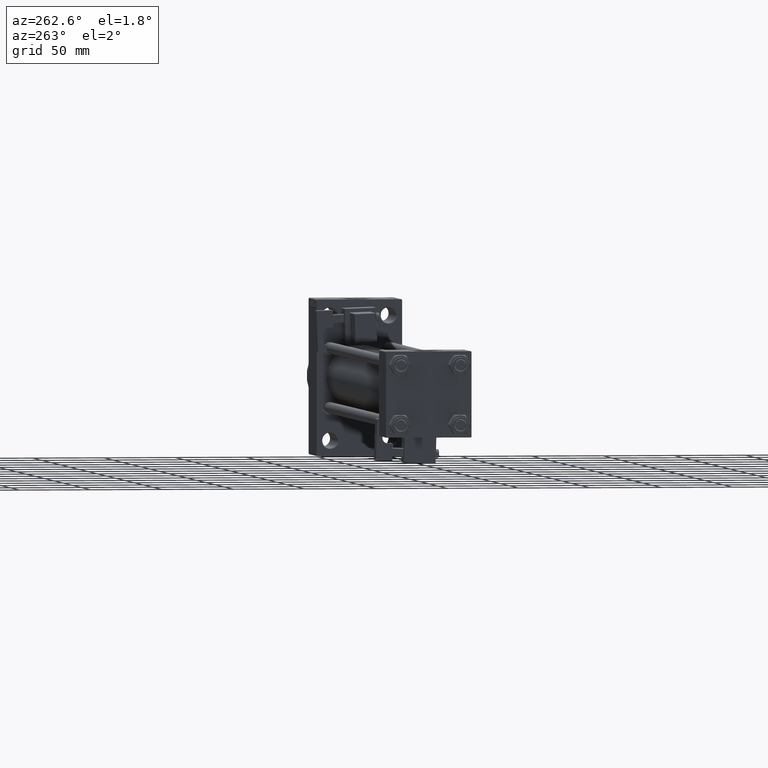
[diagram: clean part render]
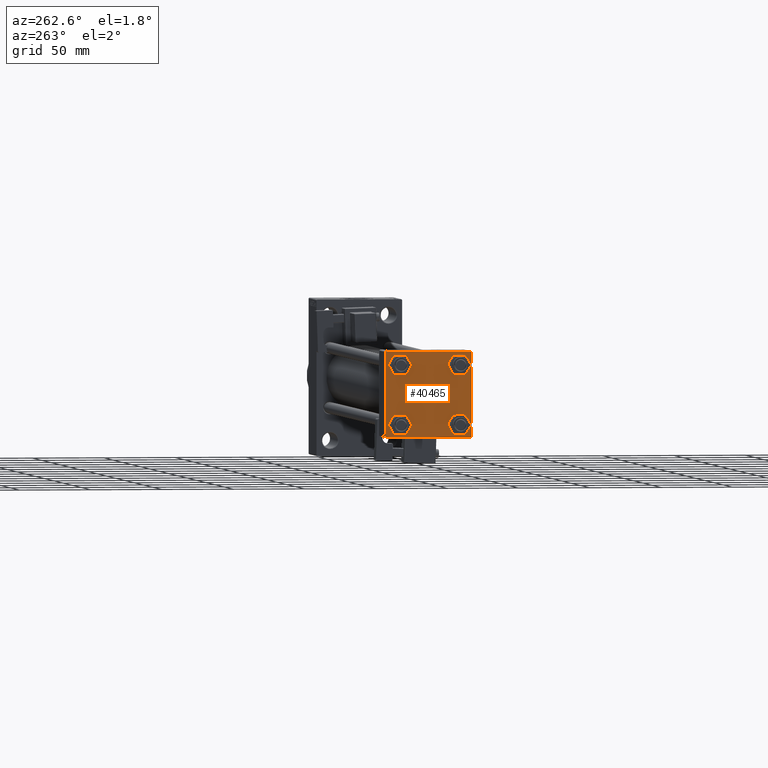
[diagram: same view with one face highlighted and labeled with its STEP entity id]
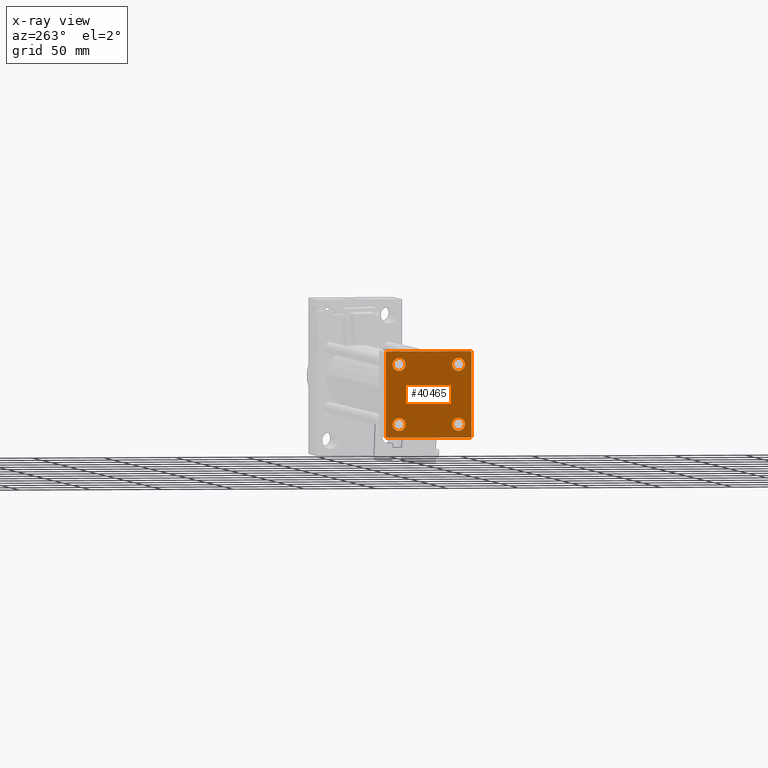
[diagram: x-ray of the same camera — body ghosted, the highlighted face saturated]
A machine part, auxiliary view. The second image highlights one B-rep face of the part: STEP entity #40465.
The next image is the same camera in x-ray: the body ghosted, the highlighted face saturated — about 0% of this face is hidden behind the body in this view.
In plain terms, the highlighted planar face has unit normal (-1, 0, 0).
Its self-contained STEP definition (entity closure, byte-faithful):
#130 = VERTEX_POINT ( 'NONE', #31679 ) ;
#153 = VECTOR ( 'NONE', #46203, 1000.000000000000114 ) ;
#1696 = ORIENTED_EDGE ( 'NONE', *, *, #16948, .T. ) ;
#2745 = ORIENTED_EDGE ( 'NONE', *, *, #18857, .F. ) ;
#2763 = VECTOR ( 'NONE', #50739, 1000.000000000000000 ) ;
#2998 = ORIENTED_EDGE ( 'NONE', *, *, #15105, .T. ) ;
#3346 = EDGE_CURVE ( 'NONE', #13725, #35781, #36344, .T. ) ;
#3425 = VERTEX_POINT ( 'NONE', #47971 ) ;
#3486 = VERTEX_POINT ( 'NONE', #22035 ) ;
#3893 = ORIENTED_EDGE ( 'NONE', *, *, #8958, .T. ) ;
#5159 = CARTESIAN_POINT ( 'NONE',  ( 0.000000000000000000, -20.84999999999999076, -20.85000000000000497 ) ) ;
#5486 = VECTOR ( 'NONE', #13920, 1000.000000000000000 ) ;
#6014 = VERTEX_POINT ( 'NONE', #45121 ) ;
#6241 = CARTESIAN_POINT ( 'NONE',  ( 0.000000000000000000, 29.99999999999999289, 29.50000000000000000 ) ) ;
#6502 = VERTEX_POINT ( 'NONE', #10227 ) ;
#7087 = VERTEX_POINT ( 'NONE', #16220 ) ;
#7116 = CARTESIAN_POINT ( 'NONE',  ( 0.000000000000000000, -30.00000000000000000, 29.99999999999999289 ) ) ;
#7464 = EDGE_CURVE ( 'NONE', #44774, #25456, #39521, .T. ) ;
#7700 = DIRECTION ( 'NONE',  ( 0.000000000000000000, -0.7071067811865474617, 0.7071067811865474617 ) ) ;
#8592 = DIRECTION ( 'NONE',  ( 1.000000000000000000, -0.000000000000000000, 0.000000000000000000 ) ) ;
#8799 = FACE_OUTER_BOUND ( 'NONE', #35746, .T. ) ;
#8958 = EDGE_CURVE ( 'NONE', #7087, #3486, #22410, .T. ) ;
#8967 = VERTEX_POINT ( 'NONE', #25935 ) ;
#9106 = EDGE_LOOP ( 'NONE', ( #31556, #2998 ) ) ;
#9114 = LINE ( 'NONE', #36611, #26845 ) ;
#9302 = EDGE_LOOP ( 'NONE', ( #40910, #3893 ) ) ;
#9375 = CIRCLE ( 'NONE', #38401, 4.500000000000017764 ) ;
#9555 = ORIENTED_EDGE ( 'NONE', *, *, #45050, .T. ) ;
#10227 = CARTESIAN_POINT ( 'NONE',  ( 0.000000000000000000, -30.00000000000000000, -29.50000000000001776 ) ) ;
#10657 = LINE ( 'NONE', #30382, #153 ) ;
#10862 = EDGE_CURVE ( 'NONE', #21174, #6502, #23449, .T. ) ;
#10939 = CARTESIAN_POINT ( 'NONE',  ( 0.000000000000000000, 20.84999999999999787, -20.85000000000000142 ) ) ;
#11029 = CIRCLE ( 'NONE', #19286, 4.500000000000017764 ) ;
#11284 = CIRCLE ( 'NONE', #49277, 4.500000000000017764 ) ;
#12259 = DIRECTION ( 'NONE',  ( 0.000000000000000000, 0.000000000000000000, -1.000000000000000000 ) ) ;
#13725 = VERTEX_POINT ( 'NONE', #31491 ) ;
#13894 = DIRECTION ( 'NONE',  ( 1.000000000000000000, -0.000000000000000000, 0.000000000000000000 ) ) ;
#13920 = DIRECTION ( 'NONE',  ( 0.000000000000000000, -1.000000000000000000, -1.156482317317871725E-16 ) ) ;
#14379 = ORIENTED_EDGE ( 'NONE', *, *, #49445, .T. ) ;
#14732 = DIRECTION ( 'NONE',  ( 0.000000000000000000, 0.000000000000000000, 1.000000000000000000 ) ) ;
#14833 = DIRECTION ( 'NONE',  ( 0.000000000000000000, 0.000000000000000000, 1.000000000000000000 ) ) ;
#14870 = CIRCLE ( 'NONE', #20664, 4.500000000000017764 ) ;
#15020 = VECTOR ( 'NONE', #20654, 1000.000000000000114 ) ;
#15091 = DIRECTION ( 'NONE',  ( 1.000000000000000000, -0.000000000000000000, 0.000000000000000000 ) ) ;
#15105 = EDGE_CURVE ( 'NONE', #35781, #13725, #11029, .T. ) ;
#15293 = EDGE_CURVE ( 'NONE', #25258, #6502, #15493, .T. ) ;
#15405 = CARTESIAN_POINT ( 'NONE',  ( 0.000000000000000000, 29.99999999999999289, 30.00000000000000000 ) ) ;
#15493 = LINE ( 'NONE', #31314, #32512 ) ;
#16045 = CIRCLE ( 'NONE', #45046, 4.500000000000017764 ) ;
#16220 = CARTESIAN_POINT ( 'NONE',  ( 0.000000000000000000, -20.84999999999999076, 16.34999999999998721 ) ) ;
#16948 = EDGE_CURVE ( 'NONE', #25456, #8967, #9114, .T. ) ;
#16952 = EDGE_CURVE ( 'NONE', #45244, #6014, #21878, .T. ) ;
#16963 = DIRECTION ( 'NONE',  ( 1.000000000000000000, -0.000000000000000000, 0.000000000000000000 ) ) ;
#17750 = CARTESIAN_POINT ( 'NONE',  ( 0.000000000000000000, -20.84999999999999076, 20.85000000000000497 ) ) ;
#18244 = EDGE_CURVE ( 'NONE', #3486, #7087, #9375, .T. ) ;
#18550 = DIRECTION ( 'NONE',  ( 0.000000000000000000, 0.000000000000000000, 1.000000000000000000 ) ) ;
#18661 = DIRECTION ( 'NONE',  ( 0.000000000000000000, 0.000000000000000000, 1.000000000000000000 ) ) ;
#18857 = EDGE_CURVE ( 'NONE', #3425, #130, #23256, .T. ) ;
#18999 = VECTOR ( 'NONE', #12259, 1000.000000000000000 ) ;
#19286 = AXIS2_PLACEMENT_3D ( 'NONE', #28044, #43873, #36089 ) ;
#20094 = EDGE_CURVE ( 'NONE', #32142, #45554, #16045, .T. ) ;
#20401 = LINE ( 'NONE', #21169, #15020 ) ;
#20654 = DIRECTION ( 'NONE',  ( 0.000000000000000000, 0.7071067811865474617, -0.7071067811865474617 ) ) ;
#20664 = AXIS2_PLACEMENT_3D ( 'NONE', #22007, #46122, #14732 ) ;
#20792 = DIRECTION ( 'NONE',  ( 0.000000000000000000, 0.000000000000000000, 1.000000000000000000 ) ) ;
#21169 = CARTESIAN_POINT ( 'NONE',  ( 0.000000000000000000, 29.74999999999999645, 29.74999999999999645 ) ) ;
#21174 = VERTEX_POINT ( 'NONE', #24723 ) ;
#21878 = CIRCLE ( 'NONE', #27642, 4.500000000000017764 ) ;
#22007 = CARTESIAN_POINT ( 'NONE',  ( 0.000000000000000000, 20.84999999999999787, 20.85000000000000142 ) ) ;
#22035 = CARTESIAN_POINT ( 'NONE',  ( 0.000000000000000000, -20.84999999999999076, 25.35000000000002274 ) ) ;
#22410 = CIRCLE ( 'NONE', #49724, 4.500000000000017764 ) ;
#23256 = LINE ( 'NONE', #46601, #2763 ) ;
#23449 = LINE ( 'NONE', #7116, #47318 ) ;
#24470 = ORIENTED_EDGE ( 'NONE', *, *, #31281, .T. ) ;
#24723 = CARTESIAN_POINT ( 'NONE',  ( 0.000000000000000000, -30.00000000000000000, 29.49999999999999289 ) ) ;
#24891 = DIRECTION ( 'NONE',  ( -1.000000000000000000, 0.000000000000000000, -0.000000000000000000 ) ) ;
#25258 = VERTEX_POINT ( 'NONE', #28373 ) ;
#25456 = VERTEX_POINT ( 'NONE', #38751 ) ;
#25935 = CARTESIAN_POINT ( 'NONE',  ( 0.000000000000000000, 29.49999999999997868, -30.00000000000000000 ) ) ;
#26315 = EDGE_CURVE ( 'NONE', #8967, #25258, #37265, .T. ) ;
#26333 = CARTESIAN_POINT ( 'NONE',  ( 0.000000000000000000, 20.84999999999999787, -20.85000000000000142 ) ) ;
#26845 = VECTOR ( 'NONE', #48031, 999.9999999999998863 ) ;
#27333 = DIRECTION ( 'NONE',  ( 0.000000000000000000, 0.000000000000000000, -1.000000000000000000 ) ) ;
#27613 = ORIENTED_EDGE ( 'NONE', *, *, #49962, .T. ) ;
#27642 = AXIS2_PLACEMENT_3D ( 'NONE', #36873, #8592, #20792 ) ;
#27682 = ORIENTED_EDGE ( 'NONE', *, *, #16952, .T. ) ;
#27840 = EDGE_LOOP ( 'NONE', ( #27682, #9555 ) ) ;
#28044 = CARTESIAN_POINT ( 'NONE',  ( 0.000000000000000000, -20.84999999999999076, -20.85000000000000497 ) ) ;
#28373 = CARTESIAN_POINT ( 'NONE',  ( 0.000000000000000000, -29.50000000000000000, -30.00000000000000711 ) ) ;
#28526 = PLANE ( 'NONE',  #42978 ) ;
#28783 = FACE_BOUND ( 'NONE', #9106, .T. ) ;
#29563 = FACE_BOUND ( 'NONE', #43455, .T. ) ;
#29678 = DIRECTION ( 'NONE',  ( 0.000000000000000000, 0.000000000000000000, 1.000000000000000000 ) ) ;
#30382 = CARTESIAN_POINT ( 'NONE',  ( -0.000000000000000000, -29.74999999999999645, 29.74999999999999645 ) ) ;
#31281 = EDGE_CURVE ( 'NONE', #45554, #32142, #11284, .T. ) ;
#31314 = CARTESIAN_POINT ( 'NONE',  ( 0.000000000000000000, -29.75000000000001066, -29.75000000000001066 ) ) ;
#31491 = CARTESIAN_POINT ( 'NONE',  ( 0.000000000000000000, -20.84999999999999076, -16.34999999999998721 ) ) ;
#31556 = ORIENTED_EDGE ( 'NONE', *, *, #3346, .T. ) ;
#31679 = CARTESIAN_POINT ( 'NONE',  ( 0.000000000000000000, -29.49999999999998579, 29.99999999999999289 ) ) ;
#32142 = VERTEX_POINT ( 'NONE', #38717 ) ;
#32512 = VECTOR ( 'NONE', #7700, 1000.000000000000114 ) ;
#33173 = DIRECTION ( 'NONE',  ( 0.000000000000000000, 0.000000000000000000, 1.000000000000000000 ) ) ;
#35746 = EDGE_LOOP ( 'NONE', ( #47993, #1696, #49716, #42446, #44011, #27613, #2745, #14379 ) ) ;
#35781 = VERTEX_POINT ( 'NONE', #43359 ) ;
#36089 = DIRECTION ( 'NONE',  ( 0.000000000000000000, 0.000000000000000000, 1.000000000000000000 ) ) ;
#36344 = CIRCLE ( 'NONE', #41328, 4.500000000000017764 ) ;
#36611 = CARTESIAN_POINT ( 'NONE',  ( 0.000000000000000000, 29.74999999999957723, -29.75000000000040501 ) ) ;
#36873 = CARTESIAN_POINT ( 'NONE',  ( 0.000000000000000000, 20.84999999999999787, 20.85000000000000142 ) ) ;
#37265 = LINE ( 'NONE', #39009, #5486 ) ;
#38131 = DIRECTION ( 'NONE',  ( 1.000000000000000000, -0.000000000000000000, 0.000000000000000000 ) ) ;
#38401 = AXIS2_PLACEMENT_3D ( 'NONE', #17750, #16963, #29678 ) ;
#38717 = CARTESIAN_POINT ( 'NONE',  ( 0.000000000000000000, 20.84999999999999787, -25.35000000000001918 ) ) ;
#38751 = CARTESIAN_POINT ( 'NONE',  ( 0.000000000000000000, 29.99999999999999289, -29.50000000000000000 ) ) ;
#39009 = CARTESIAN_POINT ( 'NONE',  ( 0.000000000000000000, 29.99999999999999289, -30.00000000000000000 ) ) ;
#39521 = LINE ( 'NONE', #15405, #18999 ) ;
#40461 = DIRECTION ( 'NONE',  ( -0.000000000000000000, 0.000000000000000000, 1.000000000000000000 ) ) ;
#40465 = ADVANCED_FACE ( 'NONE', ( #48241, #28783, #29563, #48752, #8799 ), #28526, .T. ) ;
#40522 = ORIENTED_EDGE ( 'NONE', *, *, #20094, .T. ) ;
#40910 = ORIENTED_EDGE ( 'NONE', *, *, #18244, .T. ) ;
#41328 = AXIS2_PLACEMENT_3D ( 'NONE', #5159, #48483, #33173 ) ;
#42446 = ORIENTED_EDGE ( 'NONE', *, *, #15293, .T. ) ;
#42978 = AXIS2_PLACEMENT_3D ( 'NONE', #45392, #24891, #40461 ) ;
#43359 = CARTESIAN_POINT ( 'NONE',  ( 0.000000000000000000, -20.84999999999999076, -25.35000000000002274 ) ) ;
#43455 = EDGE_LOOP ( 'NONE', ( #24470, #40522 ) ) ;
#43873 = DIRECTION ( 'NONE',  ( 1.000000000000000000, -0.000000000000000000, 0.000000000000000000 ) ) ;
#44011 = ORIENTED_EDGE ( 'NONE', *, *, #10862, .F. ) ;
#44768 = CARTESIAN_POINT ( 'NONE',  ( 0.000000000000000000, 20.84999999999999787, -16.34999999999998366 ) ) ;
#44774 = VERTEX_POINT ( 'NONE', #6241 ) ;
#45046 = AXIS2_PLACEMENT_3D ( 'NONE', #26333, #13894, #18550 ) ;
#45050 = EDGE_CURVE ( 'NONE', #6014, #45244, #14870, .T. ) ;
#45121 = CARTESIAN_POINT ( 'NONE',  ( 0.000000000000000000, 20.84999999999999787, 16.34999999999998366 ) ) ;
#45244 = VERTEX_POINT ( 'NONE', #48853 ) ;
#45392 = CARTESIAN_POINT ( 'NONE',  ( 0.000000000000000000, 0.000000000000000000, 0.000000000000000000 ) ) ;
#45554 = VERTEX_POINT ( 'NONE', #44768 ) ;
#46122 = DIRECTION ( 'NONE',  ( 1.000000000000000000, -0.000000000000000000, 0.000000000000000000 ) ) ;
#46203 = DIRECTION ( 'NONE',  ( -0.000000000000000000, 0.7071067811865474617, 0.7071067811865474617 ) ) ;
#46601 = CARTESIAN_POINT ( 'NONE',  ( 0.000000000000000000, 29.99999999999999289, 30.00000000000000000 ) ) ;
#47318 = VECTOR ( 'NONE', #27333, 1000.000000000000000 ) ;
#47971 = CARTESIAN_POINT ( 'NONE',  ( 0.000000000000000000, 29.49999999999999289, 30.00000000000000000 ) ) ;
#47993 = ORIENTED_EDGE ( 'NONE', *, *, #7464, .T. ) ;
#48031 = DIRECTION ( 'NONE',  ( -0.000000000000000000, -0.7071067811865574537, -0.7071067811865376918 ) ) ;
#48241 = FACE_BOUND ( 'NONE', #9302, .T. ) ;
#48483 = DIRECTION ( 'NONE',  ( 1.000000000000000000, -0.000000000000000000, 0.000000000000000000 ) ) ;
#48752 = FACE_BOUND ( 'NONE', #27840, .T. ) ;
#48853 = CARTESIAN_POINT ( 'NONE',  ( 0.000000000000000000, 20.84999999999999787, 25.35000000000001918 ) ) ;
#49277 = AXIS2_PLACEMENT_3D ( 'NONE', #10939, #15091, #14833 ) ;
#49445 = EDGE_CURVE ( 'NONE', #3425, #44774, #20401, .T. ) ;
#49540 = CARTESIAN_POINT ( 'NONE',  ( 0.000000000000000000, -20.84999999999999076, 20.85000000000000497 ) ) ;
#49716 = ORIENTED_EDGE ( 'NONE', *, *, #26315, .T. ) ;
#49724 = AXIS2_PLACEMENT_3D ( 'NONE', #49540, #38131, #18661 ) ;
#49962 = EDGE_CURVE ( 'NONE', #21174, #130, #10657, .T. ) ;
#50739 = DIRECTION ( 'NONE',  ( 0.000000000000000000, -1.000000000000000000, -1.156482317317871725E-16 ) ) ;